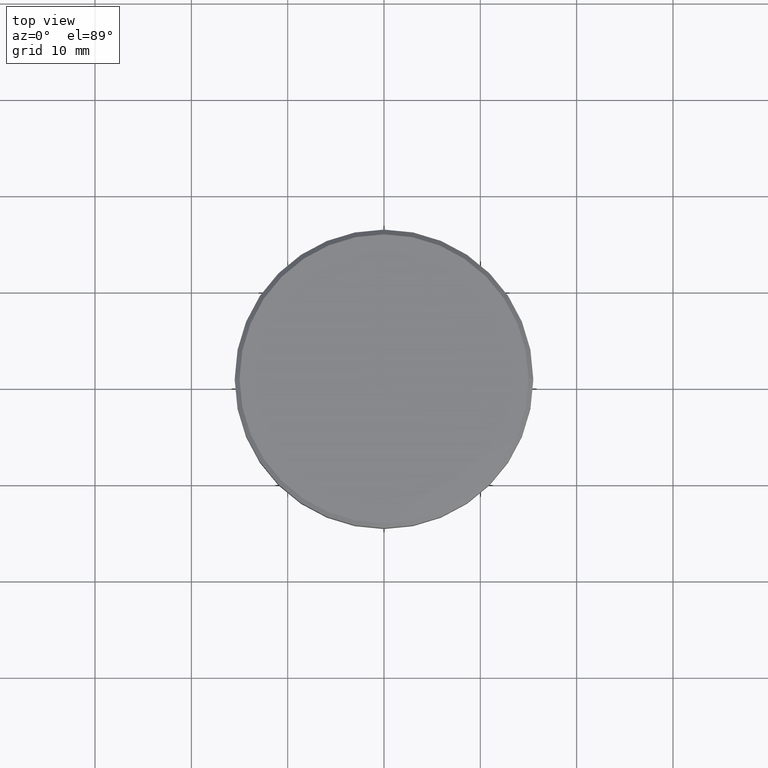
[diagram: clean part render]
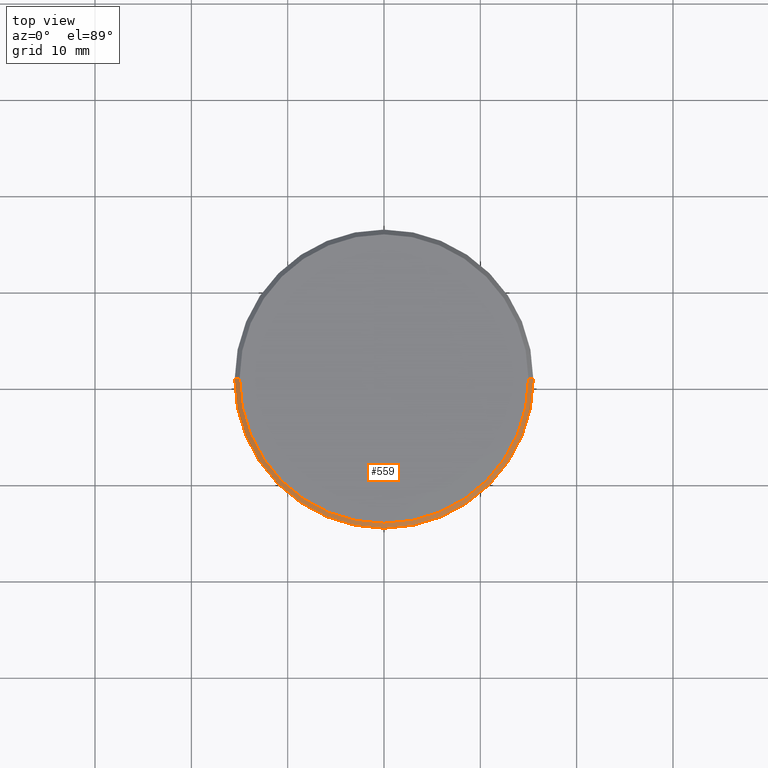
[diagram: same view with one face highlighted and labeled with its STEP entity id]
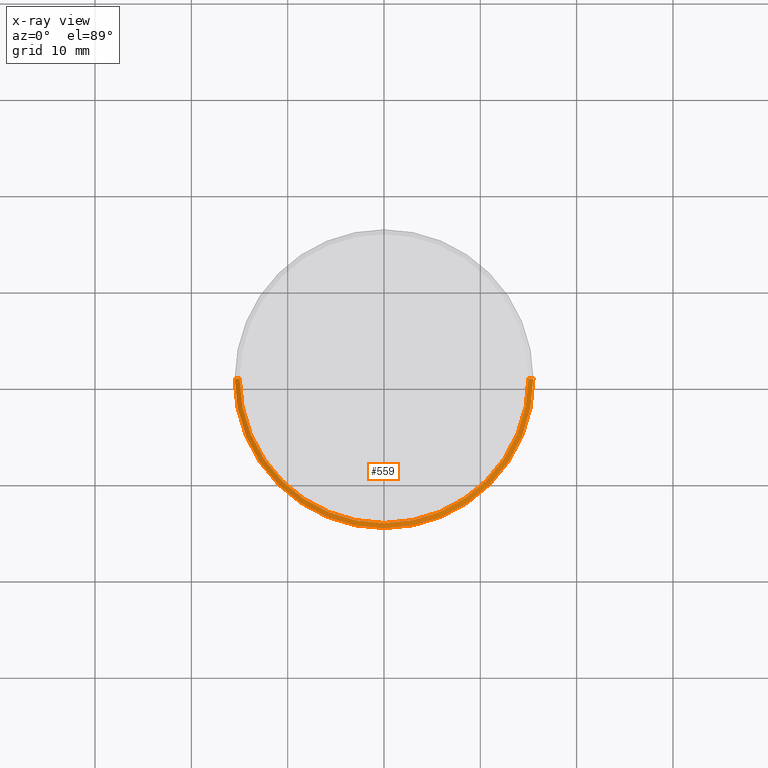
[diagram: x-ray of the same camera — body ghosted, the highlighted face saturated]
A machine part, top view. The second image highlights one B-rep face of the part: STEP entity #559.
The next image is the same camera in x-ray: the body ghosted, the highlighted face saturated — about 0% of this face is hidden behind the body in this view.
In plain terms, the highlighted conical surface has half-angle 45 deg.
Its self-contained STEP definition (entity closure, byte-faithful):
#2 = VERTEX_POINT ( 'NONE', #325 ) ;
#40 = ORIENTED_EDGE ( 'NONE', *, *, #1140, .F. ) ;
#52 = DIRECTION ( 'NONE',  ( 1.000000000000000000, 0.000000000000000000, 0.000000000000000000 ) ) ;
#75 = ORIENTED_EDGE ( 'NONE', *, *, #231, .T. ) ;
#101 = DIRECTION ( 'NONE',  ( -0.7071067811865439090, 0.000000000000000000, -0.7071067811865512365 ) ) ;
#106 = DIRECTION ( 'NONE',  ( 0.000000000000000000, 0.000000000000000000, -1.000000000000000000 ) ) ;
#185 = ORIENTED_EDGE ( 'NONE', *, *, #536, .F. ) ;
#194 = DIRECTION ( 'NONE',  ( -0.000000000000000000, -0.000000000000000000, 1.000000000000000000 ) ) ;
#231 = EDGE_CURVE ( 'NONE', #1083, #2, #740, .T. ) ;
#325 = CARTESIAN_POINT ( 'NONE',  ( -15.50000000000000000, 1.898202538678397557E-15, -0.5000000000000196509 ) ) ;
#401 = DIRECTION ( 'NONE',  ( -1.000000000000000000, 0.000000000000000000, 0.000000000000000000 ) ) ;
#405 = CONICAL_SURFACE ( 'NONE', #824, 14.99999999999998579, 0.7853981633974430610 ) ;
#441 = VERTEX_POINT ( 'NONE', #454 ) ;
#450 = VECTOR ( 'NONE', #948, 1000.000000000000000 ) ;
#454 = CARTESIAN_POINT ( 'NONE',  ( 15.50000000000000000, 0.000000000000000000, -0.5000000000000196509 ) ) ;
#462 = VECTOR ( 'NONE', #101, 1000.000000000000000 ) ;
#512 = DIRECTION ( 'NONE',  ( 0.000000000000000000, 0.000000000000000000, -1.000000000000000000 ) ) ;
#536 = EDGE_CURVE ( 'NONE', #1083, #852, #679, .T. ) ;
#559 = ADVANCED_FACE ( 'NONE', ( #1016 ), #405, .T. ) ;
#574 = DIRECTION ( 'NONE',  ( 1.000000000000000000, 0.000000000000000000, 0.000000000000000000 ) ) ;
#592 = CARTESIAN_POINT ( 'NONE',  ( 14.99999999999998579, 1.836970198721027617E-15, 0.000000000000000000 ) ) ;
#598 = LINE ( 'NONE', #592, #450 ) ;
#679 = CIRCLE ( 'NONE', #959, 14.99999999999998579 ) ;
#740 = LINE ( 'NONE', #1108, #462 ) ;
#807 = ORIENTED_EDGE ( 'NONE', *, *, #1110, .F. ) ;
#824 = AXIS2_PLACEMENT_3D ( 'NONE', #837, #106, #401 ) ;
#828 = CIRCLE ( 'NONE', #1089, 15.50000000000000000 ) ;
#837 = CARTESIAN_POINT ( 'NONE',  ( 0.000000000000000000, 0.000000000000000000, 0.000000000000000000 ) ) ;
#842 = CARTESIAN_POINT ( 'NONE',  ( 0.000000000000000000, 0.000000000000000000, 0.000000000000000000 ) ) ;
#852 = VERTEX_POINT ( 'NONE', #903 ) ;
#855 = CARTESIAN_POINT ( 'NONE',  ( 0.000000000000000000, 0.000000000000000000, -0.5000000000000196509 ) ) ;
#903 = CARTESIAN_POINT ( 'NONE',  ( 14.99999999999998579, 1.867586368699712587E-15, 0.000000000000000000 ) ) ;
#948 = DIRECTION ( 'NONE',  ( 0.7071067811865439090, 8.659560562354888485E-17, -0.7071067811865512365 ) ) ;
#959 = AXIS2_PLACEMENT_3D ( 'NONE', #842, #194, #574 ) ;
#1016 = FACE_OUTER_BOUND ( 'NONE', #1043, .T. ) ;
#1042 = CARTESIAN_POINT ( 'NONE',  ( -14.99999999999998579, 0.000000000000000000, 0.000000000000000000 ) ) ;
#1043 = EDGE_LOOP ( 'NONE', ( #40, #185, #75, #807 ) ) ;
#1083 = VERTEX_POINT ( 'NONE', #1042 ) ;
#1089 = AXIS2_PLACEMENT_3D ( 'NONE', #855, #512, #52 ) ;
#1108 = CARTESIAN_POINT ( 'NONE',  ( -14.99999999999998579, 0.000000000000000000, 0.000000000000000000 ) ) ;
#1110 = EDGE_CURVE ( 'NONE', #441, #2, #828, .T. ) ;
#1140 = EDGE_CURVE ( 'NONE', #852, #441, #598, .T. ) ;